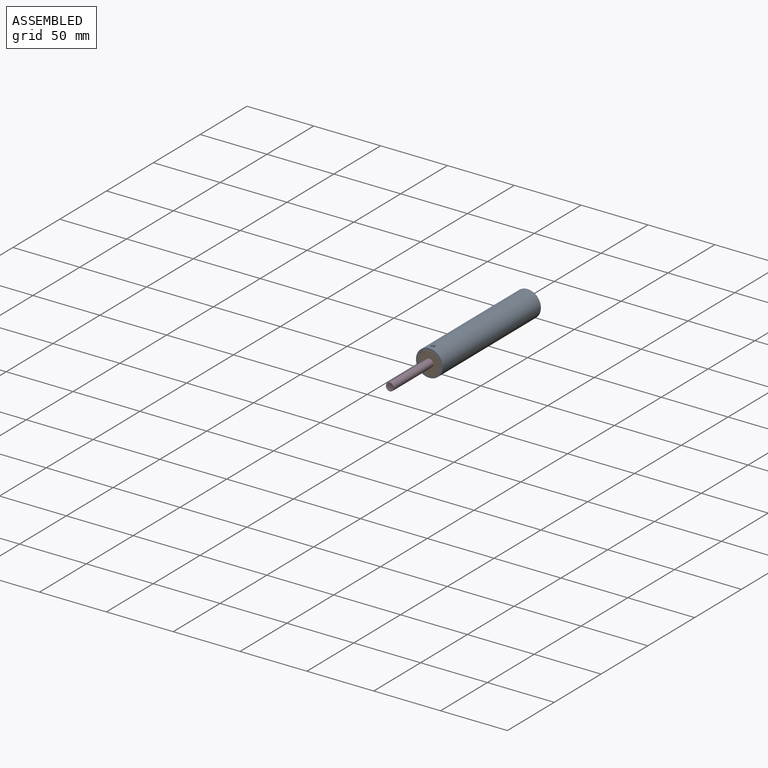
[diagram: assembled view]
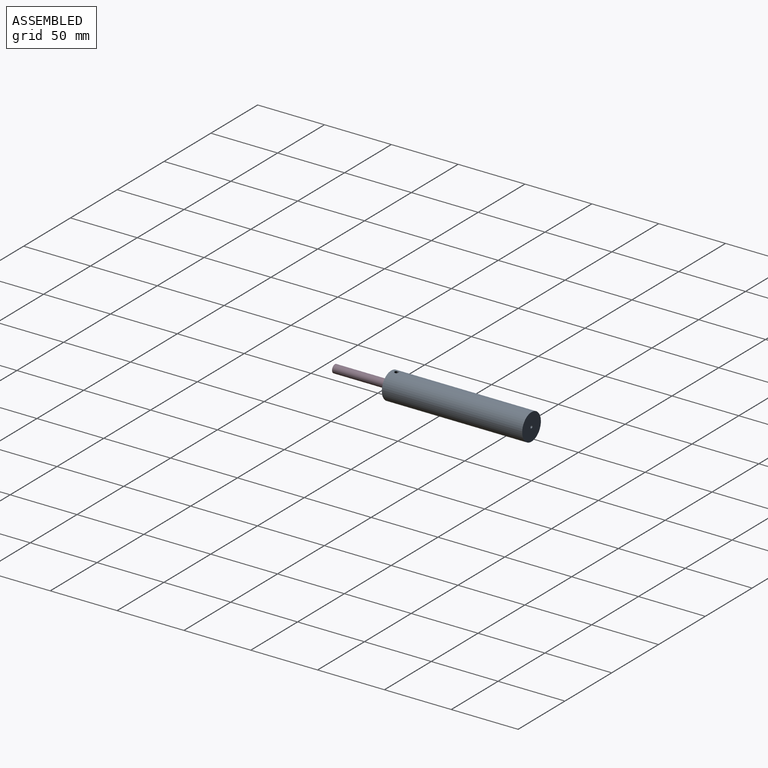
[diagram: assembled view, second angle]
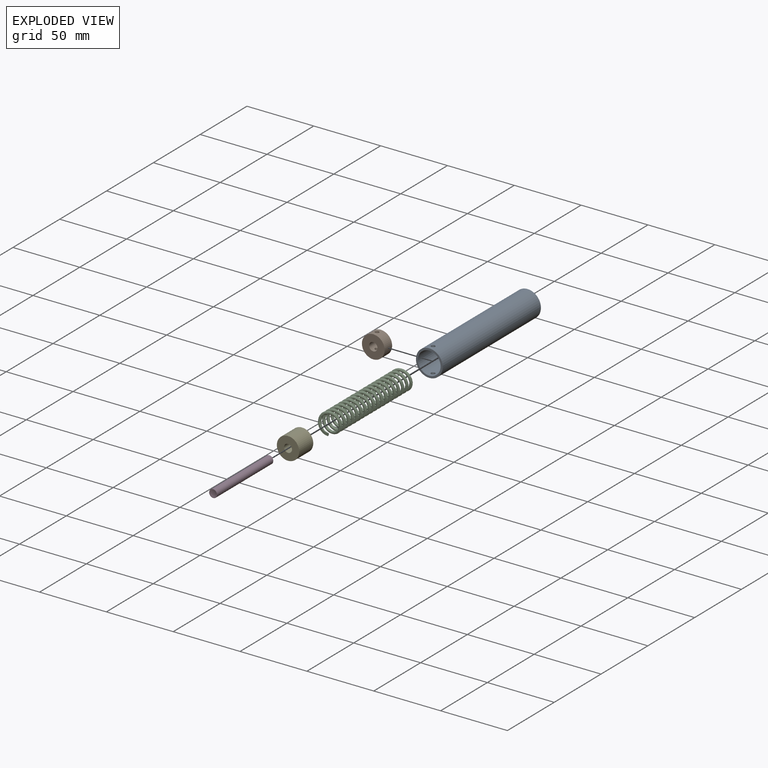
[diagram: exploded view]
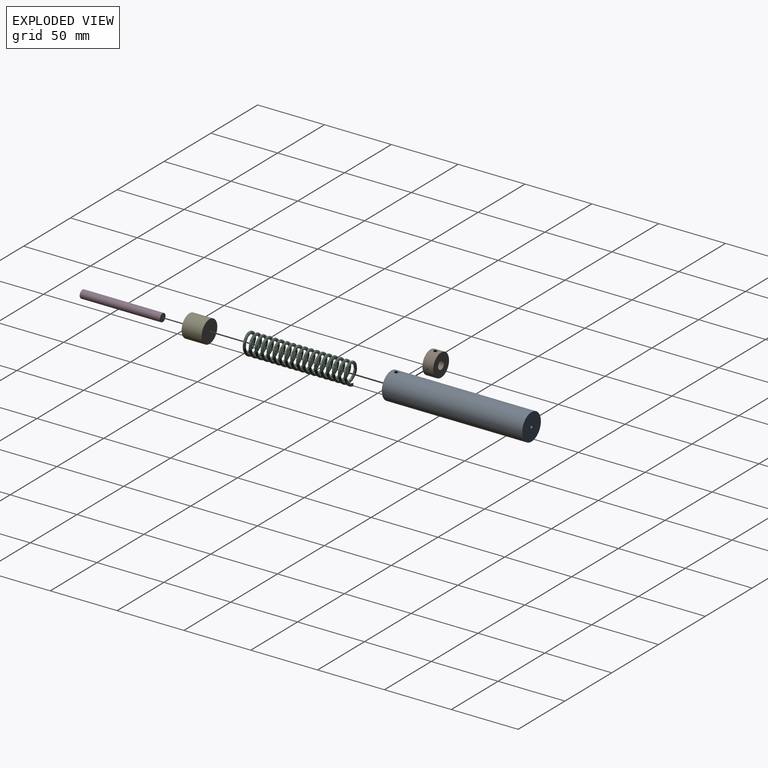
[diagram: exploded view, second angle]
ASSEMBLY  parts=5 mates=4
PART A: 8 faces, bbox 20x105x20 mm
  f0: cylinder r=10mm len=105mm, axis (0,1,0), area 6583.2mm2, adj f1,f2,f6,f7
  f1: plane 20x20mm, normal (0,-1,0), area 87.2mm2, adj f0,f3
  f2: plane 20x20mm, normal (0,1,0), area 311mm2, adj f0,f5
  f3: cylinder r=8.5mm len=103.5mm, axis (0,1,0), area 5513.5mm2, adj f1,f4,f6,f7
  f4: plane 17x17mm, normal (0,-1,0), area 223.8mm2, adj f3,f5
  f5: cylinder r=1mm len=2mm, axis (0,1,0), area 9.4mm2, adj f2,f4
  f6: cylinder r=1.5mm len=3mm, axis (0,0,1), area 14.2mm2, adj f0,f3
  f7: cylinder r=1.5mm len=3mm, axis (0,0,1), area 14.2mm2, adj f0,f3
PART B: 6 faces, bbox 17x8x17 mm
  f0: cylinder r=3.12mm len=8mm, axis (0,1,0), area 142.5mm2, adj f2,f3,f4,f5
  f1: cylinder r=8.5mm len=17mm, axis (0,1,0), area 413.1mm2, adj f2,f3,f4,f5
  f2: plane 17x17mm, normal (0,-1,0), area 196.3mm2, adj f0,f1
  f3: plane 17x17mm, normal (0,1,0), area 196.3mm2, adj f0,f1
  f4: cylinder r=1.5mm len=5.76mm, axis (0,0,1), area 51.8mm2, adj f0,f1
  f5: cylinder r=1.5mm len=5.76mm, axis (0,0,1), area 51.8mm2, adj f0,f1
PART C: 5 faces, bbox 18.8x84.3x16.3 mm
  f0: plane 2.28x1.28mm, normal (-1,0,0), area 1.6mm2, adj f1,f4
  f1: bspline ~84x18.48mm, area 4949.6mm2, adj f0,f2,f3,f4
  f2: plane 2.28x1.28mm, normal (1,0,0), area 1.6mm2, adj f1,f3
  f3: plane 7.15x6.95mm, normal (0,1,0), area 15.1mm2, adj f1,f2
  f4: plane 7.15x6.95mm, normal (0,-1,0), area 15mm2, adj f0,f1
PART D: 4 faces, bbox 6x6x60 mm
  f0: sphere r=10mm, area 23.8mm2, adj f1
  f1: plane 6x6mm, normal (0,0,1), area 4.9mm2, adj f0,f2
  f2: cylinder r=3mm len=60mm, axis (0,0,-1), area 1131mm2, adj f1,f3
  f3: plane 6x6mm, normal (0,0,-1), area 28.3mm2, adj f2
PART E: 5 faces, bbox 16.8x15x16.8 mm
  f0: cylinder r=8.38mm len=16.75mm, axis (0,1,0), area 789.3mm2, adj f1,f2
  f1: plane 16.75x16.75mm, normal (0,-1,0), area 220.4mm2, adj f0
  f2: plane 16.75x16.75mm, normal (0,1,0), area 192.1mm2, adj f0,f3
  f3: cylinder r=3mm len=10mm, axis (0,1,0), area 188.5mm2, adj f2,f4
  f4: plane 6x6mm, normal (0,1,0), area 28.3mm2, adj f3
PLACE A at identity fixed
PLACE B t=(-38.6,-97,-0.18)mm
PLACE C rot(axis=(1,0,0),180deg) t=(0,-81.5,0)mm
PLACE D rot(axis=(0.58,-0.58,0.58),120deg) t=(0,-87.12,0)mm
PLACE E rot(axis=(1,0,0),180deg) t=(-63.74,-97.12,0)mm
MATE slider A.f0 <-> E.f0  axis (0,1,0) through (0,-105,0)mm
MATE fastened A.f5 <-> C.f4  axis (0,-1,0) through (0,-1.5,0)mm
MATE fastened A.f6 <-> B.f4  axis (0,0,1) through (0,-101,8.36)mm
MATE fastened E.f0 <-> D.f2  axis (0,-1,0) through (0,-87.12,0)mm
